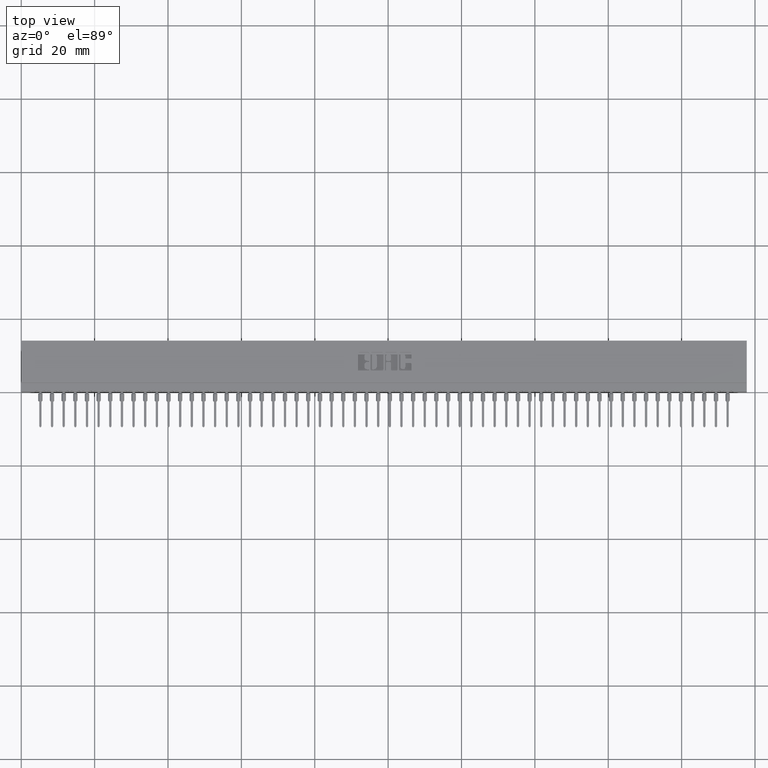
[diagram: clean part render]
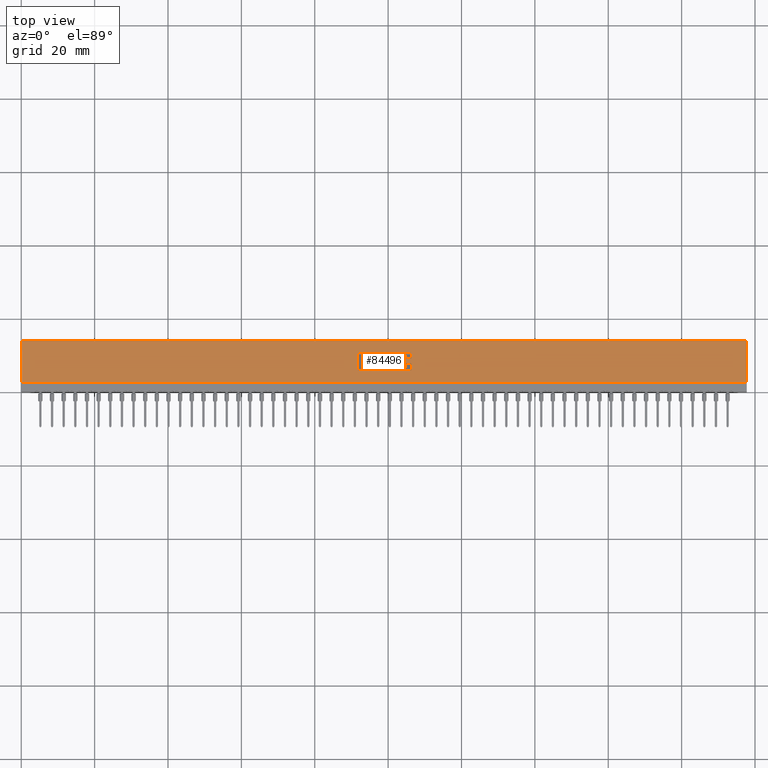
[diagram: same view with one face highlighted and labeled with its STEP entity id]
A machine part, top view. The second image highlights one B-rep face of the part: STEP entity #84496.
In plain terms, the highlighted planar face has unit normal (0, 0, -1).
Its self-contained STEP definition (entity closure, byte-faithful):
#118 = DIRECTION ( 'NONE',  ( -0.0000000000000000000, 0.0000000000000000000, 1.000000000000000000 ) ) ;
#160 = CARTESIAN_POINT ( 'NONE',  ( 3.725633606535351028, 0.4231567020380327948, 0.0000000000000000000 ) ) ;
#239 = DIRECTION ( 'NONE',  ( 0.0000000000000000000, 0.0000000000000000000, -1.000000000000000000 ) ) ;
#363 = AXIS2_PLACEMENT_3D ( 'NONE', #75052, #21993, #8177 ) ;
#456 = EDGE_CURVE ( 'NONE', #17823, #62349, #33309, .T. ) ;
#697 = DIRECTION ( 'NONE',  ( -0.0000000000000000000, 0.0000000000000000000, 1.000000000000000000 ) ) ;
#720 = AXIS2_PLACEMENT_3D ( 'NONE', #56618, #23608, #38281 ) ;
#769 = VECTOR ( 'NONE', #46273, 39.37007874015748143 ) ;
#899 = CARTESIAN_POINT ( 'NONE',  ( 3.712137060005083811, 0.3318709691426839914, 0.0000000000000000000 ) ) ;
#942 = ORIENTED_EDGE ( 'NONE', *, *, #35581, .F. ) ;
#985 = VERTEX_POINT ( 'NONE', #63590 ) ;
#1011 = CARTESIAN_POINT ( 'NONE',  ( 3.732504575677999981, 0.4162857328953863401, 0.0000000000000000000 ) ) ;
#1423 = VECTOR ( 'NONE', #83284, 39.37007874015748143 ) ;
#1590 = LINE ( 'NONE', #61792, #7435 ) ;
#1860 = LINE ( 'NONE', #35301, #40144 ) ;
#2007 = CARTESIAN_POINT ( 'NONE',  ( 3.901088711428331024, 0.2337142671046480435, 0.0000000000000000000 ) ) ;
#2060 = EDGE_LOOP ( 'NONE', ( #19575, #12474, #39169, #4233, #67596, #39565, #61912, #14577 ) ) ;
#2369 = DIRECTION ( 'NONE',  ( -1.000000000000000000, -0.0000000000000000000, -0.0000000000000000000 ) ) ;
#2464 = EDGE_CURVE ( 'NONE', #25404, #71590, #25777, .T. ) ;
#2561 = EDGE_CURVE ( 'NONE', #63890, #5316, #57704, .T. ) ;
#2607 = ORIENTED_EDGE ( 'NONE', *, *, #7916, .T. ) ;
#2633 = VERTEX_POINT ( 'NONE', #10858 ) ;
#2831 = ORIENTED_EDGE ( 'NONE', *, *, #456, .T. ) ;
#3280 = CARTESIAN_POINT ( 'NONE',  ( 3.621342110619937937, 0.4133410318342102263, 0.0000000000000000000 ) ) ;
#3495 = ORIENTED_EDGE ( 'NONE', *, *, #52227, .F. ) ;
#3633 = EDGE_CURVE ( 'NONE', #22950, #4155, #25141, .T. ) ;
#3946 = DIRECTION ( 'NONE',  ( -0.0000000000000000000, 0.0000000000000000000, 1.000000000000000000 ) ) ;
#4063 = ORIENTED_EDGE ( 'NONE', *, *, #53531, .T. ) ;
#4088 = EDGE_CURVE ( 'NONE', #20331, #81062, #78711, .T. ) ;
#4155 = VERTEX_POINT ( 'NONE', #87597 ) ;
#4233 = ORIENTED_EDGE ( 'NONE', *, *, #46121, .F. ) ;
#4337 = CARTESIAN_POINT ( 'NONE',  ( 4.093721239177998683, 0.2668421540424530947, 0.0000000000000000000 ) ) ;
#4641 = ORIENTED_EDGE ( 'NONE', *, *, #73989, .F. ) ;
#4708 = AXIS2_PLACEMENT_3D ( 'NONE', #17095, #44290, #9966 ) ;
#4947 = CARTESIAN_POINT ( 'NONE',  ( 3.901088711428331024, 0.4133410318342102263, 0.0000000000000000000 ) ) ;
#5092 = EDGE_CURVE ( 'NONE', #10386, #55599, #14182, .T. ) ;
#5302 = EDGE_CURVE ( 'NONE', #55599, #44040, #56488, .T. ) ;
#5316 = VERTEX_POINT ( 'NONE', #41794 ) ;
#5545 = AXIS2_PLACEMENT_3D ( 'NONE', #57486, #19537, #65921 ) ;
#5588 = DIRECTION ( 'NONE',  ( 1.000000000000000000, 0.0000000000000000000, 0.0000000000000000000 ) ) ;
#5799 = DIRECTION ( 'NONE',  ( 0.0000000000000000000, -1.000000000000000000, 0.0000000000000000000 ) ) ;
#6038 = CARTESIAN_POINT ( 'NONE',  ( 3.725633606535351028, 0.4162857328953863401, 0.0000000000000000000 ) ) ;
#6174 = VECTOR ( 'NONE', #49146, 39.37007874015748143 ) ;
#6895 = CIRCLE ( 'NONE', #11141, 0.009815670203806891800 ) ;
#6936 = DIRECTION ( 'NONE',  ( 1.000000000000000000, 0.0000000000000000000, 0.0000000000000000000 ) ) ;
#7311 = AXIS2_PLACEMENT_3D ( 'NONE', #34369, #74919, #48188 ) ;
#7352 = CARTESIAN_POINT ( 'NONE',  ( 3.907959680570987082, 0.2337142671046480435, 0.0000000000000000000 ) ) ;
#7408 = ORIENTED_EDGE ( 'NONE', *, *, #68815, .F. ) ;
#7435 = VECTOR ( 'NONE', #27919, 39.37007874015748143 ) ;
#7582 = VERTEX_POINT ( 'NONE', #67224 ) ;
#7777 = VERTEX_POINT ( 'NONE', #43564 ) ;
#7814 = ORIENTED_EDGE ( 'NONE', *, *, #75448, .F. ) ;
#7916 = EDGE_CURVE ( 'NONE', #41254, #20409, #39058, .T. ) ;
#8036 = VECTOR ( 'NONE', #46900, 39.37007874015748143 ) ;
#8069 = CARTESIAN_POINT ( 'NONE',  ( -0.0000000000000000000, 0.3539562271012337002, 0.0000000000000000000 ) ) ;
#8177 = DIRECTION ( 'NONE',  ( 1.000000000000000000, 0.0000000000000000000, 0.0000000000000000000 ) ) ;
#8264 = CARTESIAN_POINT ( 'NONE',  ( 4.067464321382818326, 0.3831578459575297191, 0.0000000000000000000 ) ) ;
#8487 = VECTOR ( 'NONE', #42053, 39.37007874015748143 ) ;
#8797 = AXIS2_PLACEMENT_3D ( 'NONE', #66796, #38294, #11545 ) ;
#8904 = VERTEX_POINT ( 'NONE', #35626 ) ;
#8995 = CARTESIAN_POINT ( 'NONE',  ( 4.067464321382818326, 0.0000000000000000000, 0.0000000000000000000 ) ) ;
#9081 = CARTESIAN_POINT ( 'NONE',  ( 3.977160155507785788, 0.2268432979619847134, 0.0000000000000000000 ) ) ;
#9245 = DIRECTION ( 'NONE',  ( 0.0000000000000000000, -1.000000000000000000, 0.0000000000000000000 ) ) ;
#9255 = VECTOR ( 'NONE', #29866, 39.37007874015748143 ) ;
#9427 = DIRECTION ( 'NONE',  ( 1.000000000000000000, 0.0000000000000000000, 0.0000000000000000000 ) ) ;
#9591 = DIRECTION ( 'NONE',  ( -0.0000000000000000000, -1.000000000000000000, -0.0000000000000000000 ) ) ;
#9618 = EDGE_CURVE ( 'NONE', #69433, #41254, #82811, .T. ) ;
#9706 = CARTESIAN_POINT ( 'NONE',  ( 3.748455039759169161, 0.4133410318342102263, 0.0000000000000000000 ) ) ;
#9722 = CARTESIAN_POINT ( 'NONE',  ( 4.119978156973179040, 0.2668421540424530947, 0.0000000000000000000 ) ) ;
#9827 = VERTEX_POINT ( 'NONE', #52321 ) ;
#9966 = DIRECTION ( 'NONE',  ( 1.000000000000000000, 0.0000000000000000000, 0.0000000000000000000 ) ) ;
#10249 = CARTESIAN_POINT ( 'NONE',  ( 3.680726915352909412, 0.3780046191005198564, 0.0000000000000000000 ) ) ;
#10386 = VERTEX_POINT ( 'NONE', #46394 ) ;
#10436 = DIRECTION ( 'NONE',  ( 0.0000000000000000000, 1.000000000000000000, -0.0000000000000000000 ) ) ;
#10644 = DIRECTION ( 'NONE',  ( 1.000000000000000000, 0.0000000000000000000, 0.0000000000000000000 ) ) ;
#10781 = ORIENTED_EDGE ( 'NONE', *, *, #82268, .F. ) ;
#10858 = CARTESIAN_POINT ( 'NONE',  ( 4.179362961706168278, 0.4231567020380511135, 0.0000000000000000000 ) ) ;
#10862 = AXIS2_PLACEMENT_3D ( 'NONE', #31593, #3946, #80571 ) ;
#10871 = VERTEX_POINT ( 'NONE', #2007 ) ;
#10904 = AXIS2_PLACEMENT_3D ( 'NONE', #52417, #88030, #6936 ) ;
#11141 = AXIS2_PLACEMENT_3D ( 'NONE', #25797, #79692, #10644 ) ;
#11234 = DIRECTION ( 'NONE',  ( -0.0000000000000000000, 0.0000000000000000000, 1.000000000000000000 ) ) ;
#11394 = AXIS2_PLACEMENT_3D ( 'NONE', #39722, #45987, #32604 ) ;
#11545 = DIRECTION ( 'NONE',  ( 1.000000000000000000, 0.0000000000000000000, 0.0000000000000000000 ) ) ;
#11587 = CIRCLE ( 'NONE', #50057, 0.009815670203796511215 ) ;
#12154 = VECTOR ( 'NONE', #9245, 39.37007874015748143 ) ;
#12225 = EDGE_CURVE ( 'NONE', #47422, #16369, #63045, .T. ) ;
#12226 = CARTESIAN_POINT ( 'NONE',  ( 4.067464321382818326, 0.2668421540424530947, 0.0000000000000000000 ) ) ;
#12360 = DIRECTION ( 'NONE',  ( -0.0000000000000000000, 0.0000000000000000000, 1.000000000000000000 ) ) ;
#12435 = LINE ( 'NONE', #71736, #77383 ) ;
#12474 = ORIENTED_EDGE ( 'NONE', *, *, #78423, .F. ) ;
#13115 = CIRCLE ( 'NONE', #54378, 0.03141014465218205237 ) ;
#13127 = DIRECTION ( 'NONE',  ( 1.000000000000000000, 0.0000000000000000000, 0.0000000000000000000 ) ) ;
#13446 = CARTESIAN_POINT ( 'NONE',  ( 3.725633606415414523, 0.2405852362473102912, 0.0000000000000000000 ) ) ;
#13496 = ORIENTED_EDGE ( 'NONE', *, *, #26802, .F. ) ;
#13869 = CARTESIAN_POINT ( 'NONE',  ( 4.063538053301265052, 0.2268432979619832701, 0.0000000000000000000 ) ) ;
#14074 = EDGE_CURVE ( 'NONE', #17407, #74479, #71786, .T. ) ;
#14077 = DIRECTION ( 'NONE',  ( 1.000000000000000000, 0.0000000000000000000, 0.0000000000000000000 ) ) ;
#14174 = DIRECTION ( 'NONE',  ( -0.0000000000000000000, 0.0000000000000000000, 1.000000000000000000 ) ) ;
#14182 = CIRCLE ( 'NONE', #34100, 0.009815670203787221770 ) ;
#14577 = ORIENTED_EDGE ( 'NONE', *, *, #52600, .F. ) ;
#14751 = CARTESIAN_POINT ( 'NONE',  ( 4.119978156973179040, 0.2965345564089687525, 0.0000000000000000000 ) ) ;
#15408 = ORIENTED_EDGE ( 'NONE', *, *, #15420, .F. ) ;
#15420 = EDGE_CURVE ( 'NONE', #2633, #17407, #48268, .T. ) ;
#15500 = VERTEX_POINT ( 'NONE', #1011 ) ;
#15532 = DIRECTION ( 'NONE',  ( 1.000000000000000000, 0.0000000000000000000, 0.0000000000000000000 ) ) ;
#15606 = VERTEX_POINT ( 'NONE', #37052 ) ;
#15765 = EDGE_CURVE ( 'NONE', #64678, #86329, #26774, .T. ) ;
#15801 = DIRECTION ( 'NONE',  ( 1.000000000000000000, 7.203446383881635636E-15, 0.0000000000000000000 ) ) ;
#15838 = DIRECTION ( 'NONE',  ( 1.000000000000000000, 0.0000000000000000000, 0.0000000000000000000 ) ) ;
#16041 = LINE ( 'NONE', #36549, #9255 ) ;
#16240 = CARTESIAN_POINT ( 'NONE',  ( -1.634053534411857802E-15, 0.2268432979619589562, 0.0000000000000000000 ) ) ;
#16281 = CARTESIAN_POINT ( 'NONE',  ( 3.732504575677997760, 0.2337142671046480435, 0.0000000000000000000 ) ) ;
#16369 = VERTEX_POINT ( 'NONE', #39985 ) ;
#16499 = DIRECTION ( 'NONE',  ( -1.000000000000000000, -3.530861605407645268E-14, 0.0000000000000000000 ) ) ;
#16951 = EDGE_CURVE ( 'NONE', #10871, #20409, #55103, .T. ) ;
#17095 = CARTESIAN_POINT ( 'NONE',  ( 4.063538053301265052, 0.2366589681657900179, 0.0000000000000000000 ) ) ;
#17407 = VERTEX_POINT ( 'NONE', #43302 ) ;
#17419 = LINE ( 'NONE', #31230, #61240 ) ;
#17507 = VECTOR ( 'NONE', #40652, 39.37007874015748143 ) ;
#17764 = CARTESIAN_POINT ( 'NONE',  ( 4.189178631909940442, 0.2366589681657830513, 0.0000000000000000000 ) ) ;
#17823 = VERTEX_POINT ( 'NONE', #56145 ) ;
#18048 = LINE ( 'NONE', #70656, #73520 ) ;
#18054 = VERTEX_POINT ( 'NONE', #69723 ) ;
#18197 = ORIENTED_EDGE ( 'NONE', *, *, #61053, .T. ) ;
#18399 = ORIENTED_EDGE ( 'NONE', *, *, #58595, .F. ) ;
#18491 = DIRECTION ( 'NONE',  ( 1.000000000000000000, 0.0000000000000000000, 0.0000000000000000000 ) ) ;
#18499 = EDGE_CURVE ( 'NONE', #985, #29089, #76376, .T. ) ;
#18687 = VERTEX_POINT ( 'NONE', #53073 ) ;
#18768 = CARTESIAN_POINT ( 'NONE',  ( 4.026729290037010855, 0.2366589681657809419, 0.0000000000000000000 ) ) ;
#18890 = CARTESIAN_POINT ( 'NONE',  ( 3.901088711428331024, 0.0000000000000000000, 0.0000000000000000000 ) ) ;
#18906 = CIRCLE ( 'NONE', #77261, 0.009815670203805798924 ) ;
#19002 = CARTESIAN_POINT ( 'NONE',  ( 3.914830649713646693, 0.0000000000000000000, 0.0000000000000000000 ) ) ;
#19321 = CARTESIAN_POINT ( 'NONE',  ( 3.732504575677973335, 0.3250000000000204392, 0.0000000000000000000 ) ) ;
#19537 = DIRECTION ( 'NONE',  ( -0.0000000000000000000, 0.0000000000000000000, 1.000000000000000000 ) ) ;
#19575 = ORIENTED_EDGE ( 'NONE', *, *, #66329, .F. ) ;
#19617 = EDGE_CURVE ( 'NONE', #37511, #63528, #81799, .T. ) ;
#19652 = CARTESIAN_POINT ( 'NONE',  ( 3.910904381632127613, 0.4133410318342102263, 0.0000000000000000000 ) ) ;
#19676 = EDGE_CURVE ( 'NONE', #15500, #51802, #82225, .T. ) ;
#19683 = EDGE_CURVE ( 'NONE', #28719, #20331, #81342, .T. ) ;
#19700 = CARTESIAN_POINT ( 'NONE',  ( 3.967344485303984758, 0.0000000000000000000, 0.0000000000000000000 ) ) ;
#20331 = VERTEX_POINT ( 'NONE', #23787 ) ;
#20399 = VERTEX_POINT ( 'NONE', #9081 ) ;
#20409 = VERTEX_POINT ( 'NONE', #36274 ) ;
#20523 = LINE ( 'NONE', #28110, #83034 ) ;
#20546 = CARTESIAN_POINT ( 'NONE',  ( 3.725633606535351028, 0.4094147637527357775, 0.0000000000000000000 ) ) ;
#20652 = ORIENTED_EDGE ( 'NONE', *, *, #31560, .F. ) ;
#20726 = DIRECTION ( 'NONE',  ( 1.000000000000000000, 0.0000000000000000000, 0.0000000000000000000 ) ) ;
#20756 = CARTESIAN_POINT ( 'NONE',  ( 3.748455039759169161, 0.0000000000000000000, 0.0000000000000000000 ) ) ;
#20841 = VECTOR ( 'NONE', #66247, 39.37007874015748143 ) ;
#21807 = CARTESIAN_POINT ( 'NONE',  ( -0.0000000000000000000, 0.3181290308573568870, 0.0000000000000000000 ) ) ;
#21887 = LINE ( 'NONE', #63322, #83935 ) ;
#21993 = DIRECTION ( 'NONE',  ( -0.0000000000000000000, 0.0000000000000000000, 1.000000000000000000 ) ) ;
#22078 = EDGE_CURVE ( 'NONE', #49827, #37853, #17419, .T. ) ;
#22488 = VERTEX_POINT ( 'NONE', #17764 ) ;
#22718 = DIRECTION ( 'NONE',  ( -1.000000000000000000, 0.0000000000000000000, 0.0000000000000000000 ) ) ;
#22855 = VERTEX_POINT ( 'NONE', #37275 ) ;
#22938 = EDGE_CURVE ( 'NONE', #42278, #7582, #16041, .T. ) ;
#22950 = VERTEX_POINT ( 'NONE', #66219 ) ;
#23007 = ORIENTED_EDGE ( 'NONE', *, *, #75939, .F. ) ;
#23608 = DIRECTION ( 'NONE',  ( -0.0000000000000000000, 0.0000000000000000000, 1.000000000000000000 ) ) ;
#23691 = DIRECTION ( 'NONE',  ( -0.0000000000000000000, 0.0000000000000000000, 1.000000000000000000 ) ) ;
#23787 = CARTESIAN_POINT ( 'NONE',  ( 7.785000000000000142, 0.5500000000000000444, 0.0000000000000000000 ) ) ;
#23957 = CARTESIAN_POINT ( 'NONE',  ( 3.957528815100187725, 0.3181290308573498926, 0.0000000000000000000 ) ) ;
#23973 = EDGE_CURVE ( 'NONE', #4155, #22855, #30562, .T. ) ;
#24363 = CARTESIAN_POINT ( 'NONE',  ( 7.785000000000000142, 0.5500000000000000444, 0.0000000000000000000 ) ) ;
#24471 = DIRECTION ( 'NONE',  ( -0.0000000000000000000, 0.0000000000000000000, 1.000000000000000000 ) ) ;
#24547 = ORIENTED_EDGE ( 'NONE', *, *, #69669, .F. ) ;
#24813 = DIRECTION ( 'NONE',  ( -0.0000000000000000000, -1.000000000000000000, -0.0000000000000000000 ) ) ;
#24958 = VERTEX_POINT ( 'NONE', #69388 ) ;
#25141 = CIRCLE ( 'NONE', #10862, 0.009815670203805252486 ) ;
#25404 = VERTEX_POINT ( 'NONE', #61301 ) ;
#25777 = LINE ( 'NONE', #52967, #769 ) ;
#25797 = CARTESIAN_POINT ( 'NONE',  ( 3.874095618367861871, 0.2366589681657900179, 0.0000000000000000000 ) ) ;
#26372 = ORIENTED_EDGE ( 'NONE', *, *, #59325, .F. ) ;
#26652 = ORIENTED_EDGE ( 'NONE', *, *, #56600, .T. ) ;
#26774 = LINE ( 'NONE', #46823, #50681 ) ;
#26802 = EDGE_CURVE ( 'NONE', #29766, #68423, #56812, .T. ) ;
#26833 = EDGE_CURVE ( 'NONE', #87379, #47422, #39223, .T. ) ;
#26850 = LINE ( 'NONE', #87428, #17507 ) ;
#26883 = DIRECTION ( 'NONE',  ( -1.000000000000000000, 0.0000000000000000000, 0.0000000000000000000 ) ) ;
#26993 = FACE_BOUND ( 'NONE', #85083, .T. ) ;
#27272 = ORIENTED_EDGE ( 'NONE', *, *, #34768, .T. ) ;
#27919 = DIRECTION ( 'NONE',  ( -1.000000000000000000, 0.0000000000000000000, 0.0000000000000000000 ) ) ;
#28085 = ORIENTED_EDGE ( 'NONE', *, *, #33976, .F. ) ;
#28110 = CARTESIAN_POINT ( 'NONE',  ( 0.0000000000000000000, 0.4231567020380327948, 0.0000000000000000000 ) ) ;
#28320 = FACE_BOUND ( 'NONE', #68429, .T. ) ;
#28345 = EDGE_CURVE ( 'NONE', #28719, #39894, #18048, .T. ) ;
#28719 = VERTEX_POINT ( 'NONE', #43805 ) ;
#28879 = VERTEX_POINT ( 'NONE', #38427 ) ;
#29089 = VERTEX_POINT ( 'NONE', #10249 ) ;
#29365 = CIRCLE ( 'NONE', #73424, 0.02625691779518049898 ) ;
#29452 = DIRECTION ( 'NONE',  ( 0.0000000000000000000, -1.000000000000000000, 0.0000000000000000000 ) ) ;
#29550 = EDGE_CURVE ( 'NONE', #49404, #37511, #73641, .T. ) ;
#29766 = VERTEX_POINT ( 'NONE', #75949 ) ;
#29772 = ORIENTED_EDGE ( 'NONE', *, *, #14074, .F. ) ;
#29866 = DIRECTION ( 'NONE',  ( -1.000000000000000000, -1.189163988687022540E-13, 0.0000000000000000000 ) ) ;
#30177 = CARTESIAN_POINT ( 'NONE',  ( 3.883911288571669118, 0.0000000000000000000, 0.0000000000000000000 ) ) ;
#30313 = DIRECTION ( 'NONE',  ( 0.0000000000000000000, 1.000000000000000000, -0.0000000000000000000 ) ) ;
#30317 = CARTESIAN_POINT ( 'NONE',  ( -1.123269580619267372E-14, 0.3181290308572101155, 0.0000000000000000000 ) ) ;
#30471 = DIRECTION ( 'NONE',  ( -0.0000000000000000000, 0.0000000000000000000, 1.000000000000000000 ) ) ;
#30544 = CIRCLE ( 'NONE', #720, 0.009815670203803066735 ) ;
#30557 = ORIENTED_EDGE ( 'NONE', *, *, #77230, .F. ) ;
#30562 = LINE ( 'NONE', #77364, #84404 ) ;
#30648 = VECTOR ( 'NONE', #15801, 39.37007874015748143 ) ;
#30661 = DIRECTION ( 'NONE',  ( -0.0000000000000000000, 0.0000000000000000000, 1.000000000000000000 ) ) ;
#30769 = LINE ( 'NONE', #58401, #75647 ) ;
#30964 = ORIENTED_EDGE ( 'NONE', *, *, #3633, .F. ) ;
#31071 = CARTESIAN_POINT ( 'NONE',  ( 4.129793827176966303, 0.3063502266127576257, 0.0000000000000000000 ) ) ;
#31172 = DIRECTION ( 'NONE',  ( -1.000000000000000000, 0.0000000000000000000, 0.0000000000000000000 ) ) ;
#31230 = CARTESIAN_POINT ( 'NONE',  ( 4.119978156973165717, 0.0000000000000000000, 0.0000000000000000000 ) ) ;
#31423 = VERTEX_POINT ( 'NONE', #45875 ) ;
#31560 = EDGE_CURVE ( 'NONE', #16369, #62349, #55225, .T. ) ;
#31593 = CARTESIAN_POINT ( 'NONE',  ( 4.179362961706166502, 0.3637718973050387272, 0.0000000000000000000 ) ) ;
#31972 = DIRECTION ( 'NONE',  ( -0.0000000000000000000, 0.0000000000000000000, 1.000000000000000000 ) ) ;
#32404 = AXIS2_PLACEMENT_3D ( 'NONE', #6038, #697, #5588 ) ;
#32412 = DIRECTION ( 'NONE',  ( 1.000000000000000000, 0.0000000000000000000, 0.0000000000000000000 ) ) ;
#32604 = DIRECTION ( 'NONE',  ( 1.000000000000000000, 0.0000000000000000000, 0.0000000000000000000 ) ) ;
#32930 = CARTESIAN_POINT ( 'NONE',  ( 3.914830649713646693, 0.3083133606535456428, 0.0000000000000000000 ) ) ;
#33273 = ORIENTED_EDGE ( 'NONE', *, *, #15765, .F. ) ;
#33309 = CIRCLE ( 'NONE', #77386, 0.03141014465217440571 ) ;
#33363 = CARTESIAN_POINT ( 'NONE',  ( 4.179362961706156732, 0.3063502266127576257, 0.0000000000000000000 ) ) ;
#33366 = VERTEX_POINT ( 'NONE', #12226 ) ;
#33469 = EDGE_CURVE ( 'NONE', #68423, #80080, #72549, .T. ) ;
#33523 = ORIENTED_EDGE ( 'NONE', *, *, #79963, .F. ) ;
#33680 = CARTESIAN_POINT ( 'NONE',  ( 3.924646319917449944, 0.3083133606535456428, 0.0000000000000000000 ) ) ;
#33976 = EDGE_CURVE ( 'NONE', #63890, #87379, #61932, .T. ) ;
#34100 = AXIS2_PLACEMENT_3D ( 'NONE', #57890, #51644, #51195 ) ;
#34112 = FACE_BOUND ( 'NONE', #48619, .T. ) ;
#34369 = CARTESIAN_POINT ( 'NONE',  ( 3.725633606535335485, 0.2337142671046480435, 0.0000000000000000000 ) ) ;
#34491 = CARTESIAN_POINT ( 'NONE',  ( 3.680726915352909412, 0.0000000000000000000, 0.0000000000000000000 ) ) ;
#34601 = AXIS2_PLACEMENT_3D ( 'NONE', #56454, #83613, #76924 ) ;
#34725 = CARTESIAN_POINT ( 'NONE',  ( -0.0000000000000000000, 0.4231567020380067046, 0.0000000000000000000 ) ) ;
#34768 = EDGE_CURVE ( 'NONE', #41987, #43942, #68448, .T. ) ;
#35085 = VECTOR ( 'NONE', #83799, 39.37007874015748143 ) ;
#35157 = AXIS2_PLACEMENT_3D ( 'NONE', #7352, #75527, #20726 ) ;
#35235 = AXIS2_PLACEMENT_3D ( 'NONE', #83280, #30661, #15532 ) ;
#35239 = LINE ( 'NONE', #71282, #55409 ) ;
#35301 = CARTESIAN_POINT ( 'NONE',  ( -0.0000000000000000000, 0.2268432979619832701, 0.0000000000000000000 ) ) ;
#35581 = EDGE_CURVE ( 'NONE', #31423, #76908, #11587, .T. ) ;
#35626 = CARTESIAN_POINT ( 'NONE',  ( 4.036544960240806112, 0.2366589681657809419, 0.0000000000000000000 ) ) ;
#35785 = CARTESIAN_POINT ( 'NONE',  ( 3.924646319917449944, 0.3181290308573487269, 0.0000000000000000000 ) ) ;
#35790 = ORIENTED_EDGE ( 'NONE', *, *, #59314, .F. ) ;
#35902 = AXIS2_PLACEMENT_3D ( 'NONE', #3280, #30471, #53176 ) ;
#36021 = EDGE_CURVE ( 'NONE', #49827, #64437, #58628, .T. ) ;
#36274 = CARTESIAN_POINT ( 'NONE',  ( 3.914830649713646693, 0.2337142671046480435, 0.0000000000000000000 ) ) ;
#36456 = ORIENTED_EDGE ( 'NONE', *, *, #4088, .F. ) ;
#36549 = CARTESIAN_POINT ( 'NONE',  ( -2.860952991545342866E-14, 0.2405852362468672567, 0.0000000000000000000 ) ) ;
#36716 = ORIENTED_EDGE ( 'NONE', *, *, #45155, .T. ) ;
#36788 = EDGE_CURVE ( 'NONE', #87988, #15500, #58655, .T. ) ;
#37052 = CARTESIAN_POINT ( 'NONE',  ( 3.967344485303984758, 0.2366589681657879085, 0.0000000000000000000 ) ) ;
#37275 = CARTESIAN_POINT ( 'NONE',  ( 4.189178631909972417, 0.4133410318341949052, 0.0000000000000000000 ) ) ;
#37511 = VERTEX_POINT ( 'NONE', #9706 ) ;
#37671 = DIRECTION ( 'NONE',  ( -0.0000000000000000000, 0.0000000000000000000, 1.000000000000000000 ) ) ;
#37853 = VERTEX_POINT ( 'NONE', #54698 ) ;
#37931 = AXIS2_PLACEMENT_3D ( 'NONE', #56699, #23691, #9427 ) ;
#38281 = DIRECTION ( 'NONE',  ( 1.000000000000000000, 0.0000000000000000000, 0.0000000000000000000 ) ) ;
#38283 = AXIS2_PLACEMENT_3D ( 'NONE', #55987, #62233, #15838 ) ;
#38294 = DIRECTION ( 'NONE',  ( -0.0000000000000000000, 0.0000000000000000000, 1.000000000000000000 ) ) ;
#38427 = CARTESIAN_POINT ( 'NONE',  ( 4.026729290037010855, 0.2268432979619847134, 0.0000000000000000000 ) ) ;
#38501 = CIRCLE ( 'NONE', #75545, 0.009815670203787768208 ) ;
#38513 = LINE ( 'NONE', #18890, #87136 ) ;
#38720 = ORIENTED_EDGE ( 'NONE', *, *, #69792, .T. ) ;
#39058 = LINE ( 'NONE', #19002, #20841 ) ;
#39169 = ORIENTED_EDGE ( 'NONE', *, *, #63791, .F. ) ;
#39223 = CIRCLE ( 'NONE', #42117, 0.006870969142663458512 ) ;
#39545 = DIRECTION ( 'NONE',  ( 1.000000000000000000, 0.0000000000000000000, 0.0000000000000000000 ) ) ;
#39565 = ORIENTED_EDGE ( 'NONE', *, *, #19617, .F. ) ;
#39722 = CARTESIAN_POINT ( 'NONE',  ( 4.129793827176977850, 0.3637718973050452775, 0.0000000000000000000 ) ) ;
#39894 = VERTEX_POINT ( 'NONE', #64058 ) ;
#39985 = CARTESIAN_POINT ( 'NONE',  ( 3.725633606535309728, 0.3318709691426839914, 0.0000000000000000000 ) ) ;
#40144 = VECTOR ( 'NONE', #76293, 39.37007874015748143 ) ;
#40151 = DIRECTION ( 'NONE',  ( -0.0000000000000000000, 0.0000000000000000000, 1.000000000000000000 ) ) ;
#40233 = CARTESIAN_POINT ( 'NONE',  ( 0.0000000000000000000, 0.4231567020380511135, 0.0000000000000000000 ) ) ;
#40336 = PLANE ( 'NONE',  #84202 ) ;
#40362 = CARTESIAN_POINT ( 'NONE',  ( 3.611526440416115147, 0.2366589681657900179, 0.0000000000000000000 ) ) ;
#40652 = DIRECTION ( 'NONE',  ( 1.000000000000000000, 0.0000000000000000000, 0.0000000000000000000 ) ) ;
#41001 = VERTEX_POINT ( 'NONE', #42379 ) ;
#41254 = VERTEX_POINT ( 'NONE', #32930 ) ;
#41356 = DIRECTION ( 'NONE',  ( 1.000000000000000000, 0.0000000000000000000, 0.0000000000000000000 ) ) ;
#41398 = AXIS2_PLACEMENT_3D ( 'NONE', #61729, #67972, #13127 ) ;
#41794 = CARTESIAN_POINT ( 'NONE',  ( 3.680726915352927620, 0.2867188862052006404, 0.0000000000000000000 ) ) ;
#41987 = VERTEX_POINT ( 'NONE', #77241 ) ;
#42053 = DIRECTION ( 'NONE',  ( 0.0000000000000000000, 1.000000000000000000, -0.0000000000000000000 ) ) ;
#42090 = ORIENTED_EDGE ( 'NONE', *, *, #47242, .T. ) ;
#42117 = AXIS2_PLACEMENT_3D ( 'NONE', #45185, #58552, #80339 ) ;
#42278 = VERTEX_POINT ( 'NONE', #13446 ) ;
#42379 = CARTESIAN_POINT ( 'NONE',  ( 3.883911288571669118, 0.2366589681657900179, 0.0000000000000000000 ) ) ;
#42385 = LINE ( 'NONE', #8069, #35085 ) ;
#43302 = CARTESIAN_POINT ( 'NONE',  ( 4.063538053301299691, 0.4231567020380511135, 0.0000000000000000000 ) ) ;
#43500 = DIRECTION ( 'NONE',  ( 0.0000000000000000000, 1.000000000000000000, -0.0000000000000000000 ) ) ;
#43564 = CARTESIAN_POINT ( 'NONE',  ( 4.053722383097458248, 0.2366589681657900179, 0.0000000000000000000 ) ) ;
#43805 = CARTESIAN_POINT ( 'NONE',  ( 0.0000000000000000000, 0.5500000000000000444, 0.0000000000000000000 ) ) ;
#43942 = VERTEX_POINT ( 'NONE', #23957 ) ;
#44040 = VERTEX_POINT ( 'NONE', #31071 ) ;
#44290 = DIRECTION ( 'NONE',  ( -0.0000000000000000000, 0.0000000000000000000, 1.000000000000000000 ) ) ;
#44388 = AXIS2_PLACEMENT_3D ( 'NONE', #33680, #60869, #14077 ) ;
#44561 = ORIENTED_EDGE ( 'NONE', *, *, #18499, .T. ) ;
#45155 = EDGE_CURVE ( 'NONE', #63882, #7582, #13115, .T. ) ;
#45185 = CARTESIAN_POINT ( 'NONE',  ( 3.725633606535309728, 0.3250000000000204392, 0.0000000000000000000 ) ) ;
#45198 = VECTOR ( 'NONE', #87133, 39.37007874015748143 ) ;
#45358 = CARTESIAN_POINT ( 'NONE',  ( 3.712137060005109568, 0.2719953808994904909, 0.0000000000000000000 ) ) ;
#45799 = DIRECTION ( 'NONE',  ( 1.000000000000000000, 0.0000000000000000000, 0.0000000000000000000 ) ) ;
#45875 = CARTESIAN_POINT ( 'NONE',  ( 3.910904381632127613, 0.4231567020380067046, 0.0000000000000000000 ) ) ;
#45987 = DIRECTION ( 'NONE',  ( -0.0000000000000000000, 0.0000000000000000000, 1.000000000000000000 ) ) ;
#46042 = CARTESIAN_POINT ( 'NONE',  ( 4.179362961706131863, 0.4133410318342110035, 0.0000000000000000000 ) ) ;
#46121 = EDGE_CURVE ( 'NONE', #58204, #83414, #26850, .T. ) ;
#46273 = DIRECTION ( 'NONE',  ( 0.0000000000000000000, -1.000000000000000000, 0.0000000000000000000 ) ) ;
#46380 = EDGE_CURVE ( 'NONE', #71590, #29766, #18906, .T. ) ;
#46394 = CARTESIAN_POINT ( 'NONE',  ( 4.189178631909940442, 0.2965345564089705288, 0.0000000000000000000 ) ) ;
#46408 = DIRECTION ( 'NONE',  ( -0.0000000000000000000, 0.0000000000000000000, 1.000000000000000000 ) ) ;
#46823 = CARTESIAN_POINT ( 'NONE',  ( 4.119978156973179040, 0.0000000000000000000, 0.0000000000000000000 ) ) ;
#46900 = DIRECTION ( 'NONE',  ( 0.0000000000000000000, 1.000000000000000000, -0.0000000000000000000 ) ) ;
#47031 = DIRECTION ( 'NONE',  ( -1.000000000000000000, 0.0000000000000000000, -0.0000000000000000000 ) ) ;
#47242 = EDGE_CURVE ( 'NONE', #10871, #76908, #38513, .T. ) ;
#47369 = CARTESIAN_POINT ( 'NONE',  ( 4.063538053301299691, 0.4133410318342102263, 0.0000000000000000000 ) ) ;
#47422 = VERTEX_POINT ( 'NONE', #19321 ) ;
#48188 = DIRECTION ( 'NONE',  ( 1.000000000000000000, 0.0000000000000000000, 0.0000000000000000000 ) ) ;
#48268 = LINE ( 'NONE', #40233, #54916 ) ;
#48619 = EDGE_LOOP ( 'NONE', ( #86718, #33523, #38720, #81202, #26652, #30557, #63369, #27272, #4063, #68968, #2607, #72407, #42090, #942 ) ) ;
#48691 = ORIENTED_EDGE ( 'NONE', *, *, #2561, .T. ) ;
#49048 = AXIS2_PLACEMENT_3D ( 'NONE', #47369, #118, #74534 ) ;
#49146 = DIRECTION ( 'NONE',  ( 0.0000000000000000000, 1.000000000000000000, -0.0000000000000000000 ) ) ;
#49206 = AXIS2_PLACEMENT_3D ( 'NONE', #75219, #14174, #41356 ) ;
#49404 = VERTEX_POINT ( 'NONE', #81054 ) ;
#49460 = EDGE_CURVE ( 'NONE', #31423, #83476, #64848, .T. ) ;
#49827 = VERTEX_POINT ( 'NONE', #54593 ) ;
#50057 = AXIS2_PLACEMENT_3D ( 'NONE', #19652, #40151, #52673 ) ;
#50061 = LINE ( 'NONE', #34491, #8487 ) ;
#50415 = VECTOR ( 'NONE', #71600, 39.37007874015748143 ) ;
#50681 = VECTOR ( 'NONE', #54862, 39.37007874015748143 ) ;
#51134 = VECTOR ( 'NONE', #24813, 39.37007874015748143 ) ;
#51195 = DIRECTION ( 'NONE',  ( 1.000000000000000000, 0.0000000000000000000, 0.0000000000000000000 ) ) ;
#51644 = DIRECTION ( 'NONE',  ( -0.0000000000000000000, 0.0000000000000000000, 1.000000000000000000 ) ) ;
#51659 = DIRECTION ( 'NONE',  ( 1.000000000000000000, 0.0000000000000000000, 0.0000000000000000000 ) ) ;
#51802 = VERTEX_POINT ( 'NONE', #160 ) ;
#52227 = EDGE_CURVE ( 'NONE', #80080, #42278, #61461, .T. ) ;
#52321 = CARTESIAN_POINT ( 'NONE',  ( 4.036544960240806112, 0.4133410318342010670, 0.0000000000000000000 ) ) ;
#52417 = CARTESIAN_POINT ( 'NONE',  ( 3.874095618367828120, 0.4133410318342100598, 0.0000000000000000000 ) ) ;
#52600 = EDGE_CURVE ( 'NONE', #18687, #49404, #1590, .T. ) ;
#52673 = DIRECTION ( 'NONE',  ( 1.000000000000000000, 0.0000000000000000000, 0.0000000000000000000 ) ) ;
#52691 = CARTESIAN_POINT ( 'NONE',  ( 3.725633606535351028, 0.4162857328953863401, 0.0000000000000000000 ) ) ;
#52810 = ORIENTED_EDGE ( 'NONE', *, *, #80429, .F. ) ;
#52823 = CARTESIAN_POINT ( 'NONE',  ( 3.725633606535335485, 0.2337142671046480435, 0.0000000000000000000 ) ) ;
#52956 = CIRCLE ( 'NONE', #64339, 0.009815670203840221042 ) ;
#52967 = CARTESIAN_POINT ( 'NONE',  ( 3.611526440416115147, 0.0000000000000000000, 0.0000000000000000000 ) ) ;
#53024 = CARTESIAN_POINT ( 'NONE',  ( 7.785000000000000142, 0.1000000000000000056, 0.0000000000000000000 ) ) ;
#53059 = EDGE_CURVE ( 'NONE', #63528, #58204, #77206, .T. ) ;
#53073 = CARTESIAN_POINT ( 'NONE',  ( 3.874095618367896066, 0.4231567020380511135, 0.0000000000000000000 ) ) ;
#53176 = DIRECTION ( 'NONE',  ( 1.000000000000000000, 0.0000000000000000000, 0.0000000000000000000 ) ) ;
#53427 = DIRECTION ( 'NONE',  ( -0.0000000000000000000, 0.0000000000000000000, 1.000000000000000000 ) ) ;
#53531 = EDGE_CURVE ( 'NONE', #43942, #69433, #71304, .T. ) ;
#54378 = AXIS2_PLACEMENT_3D ( 'NONE', #45358, #31972, #32412 ) ;
#54593 = CARTESIAN_POINT ( 'NONE',  ( 4.119978156973165717, 0.3831578454992600191, 0.0000000000000000000 ) ) ;
#54698 = CARTESIAN_POINT ( 'NONE',  ( 4.119978156973165717, 0.3637718973050452775, 0.0000000000000000000 ) ) ;
#54789 = DIRECTION ( 'NONE',  ( -1.000000000000000000, 0.0000000000000000000, 0.0000000000000000000 ) ) ;
#54862 = DIRECTION ( 'NONE',  ( 0.0000000000000000000, -1.000000000000000000, 0.0000000000000000000 ) ) ;
#54916 = VECTOR ( 'NONE', #26883, 39.37007874015748143 ) ;
#54938 = EDGE_CURVE ( 'NONE', #28879, #8904, #64358, .T. ) ;
#55103 = CIRCLE ( 'NONE', #35157, 0.006870969142657995000 ) ;
#55225 = LINE ( 'NONE', #82375, #69449 ) ;
#55409 = VECTOR ( 'NONE', #70416, 39.37007874015748143 ) ;
#55599 = VERTEX_POINT ( 'NONE', #33363 ) ;
#55914 = ORIENTED_EDGE ( 'NONE', *, *, #19676, .F. ) ;
#55987 = CARTESIAN_POINT ( 'NONE',  ( 4.026729290037011744, 0.4133410318342105039, 0.0000000000000000000 ) ) ;
#56145 = CARTESIAN_POINT ( 'NONE',  ( 3.680726915352909412, 0.3632811137948584457, 0.0000000000000000000 ) ) ;
#56200 = VERTEX_POINT ( 'NONE', #80710 ) ;
#56454 = CARTESIAN_POINT ( 'NONE',  ( 3.725633606535309728, 0.3250000000000204392, 0.0000000000000000000 ) ) ;
#56488 = LINE ( 'NONE', #56912, #68327 ) ;
#56600 = EDGE_CURVE ( 'NONE', #28879, #20399, #12435, .T. ) ;
#56618 = CARTESIAN_POINT ( 'NONE',  ( 3.977160155507788009, 0.2366589681657879085, 0.0000000000000000000 ) ) ;
#56699 = CARTESIAN_POINT ( 'NONE',  ( 3.712137060005125555, 0.3780046191005198564, 0.0000000000000000000 ) ) ;
#56812 = LINE ( 'NONE', #16240, #30648 ) ;
#56912 = CARTESIAN_POINT ( 'NONE',  ( 0.0000000000000000000, 0.3063502266127576257, 0.0000000000000000000 ) ) ;
#57486 = CARTESIAN_POINT ( 'NONE',  ( 4.179362961706133639, 0.2366589681657900179, 0.0000000000000000000 ) ) ;
#57704 = CIRCLE ( 'NONE', #49206, 0.03141014465215637153 ) ;
#57890 = CARTESIAN_POINT ( 'NONE',  ( 4.179362961706153179, 0.2965345564089705288, 0.0000000000000000000 ) ) ;
#57964 = DIRECTION ( 'NONE',  ( 0.0000000000000000000, 1.000000000000000000, -0.0000000000000000000 ) ) ;
#57972 = CARTESIAN_POINT ( 'NONE',  ( 4.026729290037013520, 0.4231567020380067046, 0.0000000000000000000 ) ) ;
#58204 = VERTEX_POINT ( 'NONE', #66777 ) ;
#58235 = LINE ( 'NONE', #30177, #50415 ) ;
#58372 = CARTESIAN_POINT ( 'NONE',  ( 3.680726915352927620, 0.0000000000000000000, 0.0000000000000000000 ) ) ;
#58401 = CARTESIAN_POINT ( 'NONE',  ( 4.189178631909940442, 0.0000000000000000000, 0.0000000000000000000 ) ) ;
#58552 = DIRECTION ( 'NONE',  ( -0.0000000000000000000, 0.0000000000000000000, 1.000000000000000000 ) ) ;
#58595 = EDGE_CURVE ( 'NONE', #74479, #7777, #78730, .T. ) ;
#58628 = CIRCLE ( 'NONE', #8797, 0.02625691779517394173 ) ;
#58655 = CIRCLE ( 'NONE', #65775, 0.006870969142648706424 ) ;
#58911 = CARTESIAN_POINT ( 'NONE',  ( 3.725633606415414523, 0.2268432979619857959, 0.0000000000000000000 ) ) ;
#59173 = DIRECTION ( 'NONE',  ( -0.0000000000000000000, 0.0000000000000000000, 1.000000000000000000 ) ) ;
#59314 = EDGE_CURVE ( 'NONE', #71554, #22950, #42385, .T. ) ;
#59325 = EDGE_CURVE ( 'NONE', #63882, #5316, #69556, .T. ) ;
#59378 = DIRECTION ( 'NONE',  ( 1.000000000000000000, 0.0000000000000000000, 0.0000000000000000000 ) ) ;
#59979 = CARTESIAN_POINT ( 'NONE',  ( 0.0000000000000000000, 0.5500000000000000444, 0.0000000000000000000 ) ) ;
#60154 = VECTOR ( 'NONE', #16499, 39.37007874015748143 ) ;
#60549 = DIRECTION ( 'NONE',  ( 1.000000000000000000, 0.0000000000000000000, 0.0000000000000000000 ) ) ;
#60869 = DIRECTION ( 'NONE',  ( -0.0000000000000000000, 0.0000000000000000000, 1.000000000000000000 ) ) ;
#61053 = EDGE_CURVE ( 'NONE', #33366, #86329, #29365, .T. ) ;
#61240 = VECTOR ( 'NONE', #5799, 39.37007874015748143 ) ;
#61301 = CARTESIAN_POINT ( 'NONE',  ( 3.611526440416115147, 0.4133410318342102263, 0.0000000000000000000 ) ) ;
#61461 = CIRCLE ( 'NONE', #7311, 0.006870969142662365636 ) ;
#61729 = CARTESIAN_POINT ( 'NONE',  ( 3.957528815100187725, 0.3083133606535528592, 0.0000000000000000000 ) ) ;
#61792 = CARTESIAN_POINT ( 'NONE',  ( 0.0000000000000000000, 0.4231567020380511135, 0.0000000000000000000 ) ) ;
#61912 = ORIENTED_EDGE ( 'NONE', *, *, #29550, .F. ) ;
#61932 = LINE ( 'NONE', #21807, #1423 ) ;
#61938 = CARTESIAN_POINT ( 'NONE',  ( 3.725633606415388765, 0.3181290308573568870, 0.0000000000000000000 ) ) ;
#61957 = EDGE_CURVE ( 'NONE', #15606, #41987, #80749, .T. ) ;
#62233 = DIRECTION ( 'NONE',  ( -0.0000000000000000000, 0.0000000000000000000, 1.000000000000000000 ) ) ;
#62349 = VERTEX_POINT ( 'NONE', #899 ) ;
#62949 = LINE ( 'NONE', #8995, #6174 ) ;
#63045 = CIRCLE ( 'NONE', #34601, 0.006870969142663458512 ) ;
#63322 = CARTESIAN_POINT ( 'NONE',  ( 4.036544960240806112, 0.0000000000000000000, 0.0000000000000000000 ) ) ;
#63327 = ORIENTED_EDGE ( 'NONE', *, *, #22938, .F. ) ;
#63369 = ORIENTED_EDGE ( 'NONE', *, *, #61957, .T. ) ;
#63528 = VERTEX_POINT ( 'NONE', #82455 ) ;
#63590 = CARTESIAN_POINT ( 'NONE',  ( 3.712137060005125555, 0.4094147637527357775, 0.0000000000000000000 ) ) ;
#63791 = EDGE_CURVE ( 'NONE', #83414, #41001, #6895, .T. ) ;
#63796 = CARTESIAN_POINT ( 'NONE',  ( 3.874095618367861871, 0.2268432979619832701, 0.0000000000000000000 ) ) ;
#63882 = VERTEX_POINT ( 'NONE', #80577 ) ;
#63890 = VERTEX_POINT ( 'NONE', #82356 ) ;
#63912 = CIRCLE ( 'NONE', #5545, 0.009815670203806345362 ) ;
#64058 = CARTESIAN_POINT ( 'NONE',  ( 0.0000000000000000000, 0.1000000000000000056, 0.0000000000000000000 ) ) ;
#64291 = ORIENTED_EDGE ( 'NONE', *, *, #23973, .F. ) ;
#64339 = AXIS2_PLACEMENT_3D ( 'NONE', #46042, #66968, #80766 ) ;
#64358 = CIRCLE ( 'NONE', #68628, 0.009815670203795964777 ) ;
#64437 = VERTEX_POINT ( 'NONE', #8264 ) ;
#64477 = CARTESIAN_POINT ( 'NONE',  ( 4.129793827176977850, 0.3539562271012337002, 0.0000000000000000000 ) ) ;
#64678 = VERTEX_POINT ( 'NONE', #14751 ) ;
#64848 = LINE ( 'NONE', #34725, #78876 ) ;
#65775 = AXIS2_PLACEMENT_3D ( 'NONE', #52691, #11234, #59378 ) ;
#65921 = DIRECTION ( 'NONE',  ( 1.000000000000000000, 0.0000000000000000000, 0.0000000000000000000 ) ) ;
#65985 = CARTESIAN_POINT ( 'NONE',  ( 4.053722383097458248, 0.4133410318342102263, 0.0000000000000000000 ) ) ;
#66014 = ORIENTED_EDGE ( 'NONE', *, *, #68680, .F. ) ;
#66219 = CARTESIAN_POINT ( 'NONE',  ( 4.179362961706166502, 0.3539562271012335337, 0.0000000000000000000 ) ) ;
#66247 = DIRECTION ( 'NONE',  ( 0.0000000000000000000, -1.000000000000000000, 0.0000000000000000000 ) ) ;
#66329 = EDGE_CURVE ( 'NONE', #24958, #18687, #87758, .T. ) ;
#66618 = EDGE_LOOP ( 'NONE', ( #73726, #52810, #36456, #66949 ) ) ;
#66691 = ORIENTED_EDGE ( 'NONE', *, *, #26833, .F. ) ;
#66777 = CARTESIAN_POINT ( 'NONE',  ( 3.758270709962975964, 0.2268432979619832701, 0.0000000000000000000 ) ) ;
#66796 = CARTESIAN_POINT ( 'NONE',  ( 4.093721239177991578, 0.3831578459575297191, 0.0000000000000000000 ) ) ;
#66949 = ORIENTED_EDGE ( 'NONE', *, *, #19683, .F. ) ;
#66968 = DIRECTION ( 'NONE',  ( -0.0000000000000000000, 0.0000000000000000000, 1.000000000000000000 ) ) ;
#67223 = CARTESIAN_POINT ( 'NONE',  ( 4.129793827176966303, 0.2965345564089696406, 0.0000000000000000000 ) ) ;
#67224 = CARTESIAN_POINT ( 'NONE',  ( 3.712137060005109568, 0.2405852362473086814, 0.0000000000000000000 ) ) ;
#67596 = ORIENTED_EDGE ( 'NONE', *, *, #53059, .F. ) ;
#67930 = ORIENTED_EDGE ( 'NONE', *, *, #72476, .F. ) ;
#67972 = DIRECTION ( 'NONE',  ( -0.0000000000000000000, 0.0000000000000000000, 1.000000000000000000 ) ) ;
#68327 = VECTOR ( 'NONE', #76961, 39.37007874015748143 ) ;
#68423 = VERTEX_POINT ( 'NONE', #58911 ) ;
#68429 = EDGE_LOOP ( 'NONE', ( #44561, #78114, #2831, #20652, #84519, #66691, #28085, #48691, #26372, #36716, #63327, #3495, #76995, #13496, #83085, #87283, #4641, #23007, #55914, #79985, #66014 ) ) ;
#68448 = CIRCLE ( 'NONE', #41398, 0.009815670203797057652 ) ;
#68628 = AXIS2_PLACEMENT_3D ( 'NONE', #18768, #46408, #86063 ) ;
#68680 = EDGE_CURVE ( 'NONE', #985, #87988, #35239, .T. ) ;
#68815 = EDGE_CURVE ( 'NONE', #56200, #22488, #63912, .T. ) ;
#68968 = ORIENTED_EDGE ( 'NONE', *, *, #9618, .T. ) ;
#69253 = VECTOR ( 'NONE', #30313, 39.37007874015748143 ) ;
#69388 = CARTESIAN_POINT ( 'NONE',  ( 3.883911288571669118, 0.4133410318342102263, 0.0000000000000000000 ) ) ;
#69389 = EDGE_CURVE ( 'NONE', #17823, #29089, #50061, .T. ) ;
#69433 = VERTEX_POINT ( 'NONE', #35785 ) ;
#69449 = VECTOR ( 'NONE', #54789, 39.37007874015748143 ) ;
#69556 = LINE ( 'NONE', #58372, #69253 ) ;
#69669 = EDGE_CURVE ( 'NONE', #37853, #71554, #82532, .T. ) ;
#69723 = CARTESIAN_POINT ( 'NONE',  ( 3.621342110619937937, 0.4231567020380327948, 0.0000000000000000000 ) ) ;
#69792 = EDGE_CURVE ( 'NONE', #9827, #8904, #21887, .T. ) ;
#70308 = CARTESIAN_POINT ( 'NONE',  ( 4.053722383097458248, 0.0000000000000000000, 0.0000000000000000000 ) ) ;
#70416 = DIRECTION ( 'NONE',  ( 1.000000000000000000, 0.0000000000000000000, 0.0000000000000000000 ) ) ;
#70656 = CARTESIAN_POINT ( 'NONE',  ( 0.0000000000000000000, 0.5500000000000000444, 0.0000000000000000000 ) ) ;
#70979 = LINE ( 'NONE', #77236, #79625 ) ;
#71282 = CARTESIAN_POINT ( 'NONE',  ( -0.0000000000000000000, 0.4094147637527357775, 0.0000000000000000000 ) ) ;
#71304 = LINE ( 'NONE', #30317, #60154 ) ;
#71554 = VERTEX_POINT ( 'NONE', #64477 ) ;
#71590 = VERTEX_POINT ( 'NONE', #40362 ) ;
#71600 = DIRECTION ( 'NONE',  ( 0.0000000000000000000, 1.000000000000000000, -0.0000000000000000000 ) ) ;
#71736 = CARTESIAN_POINT ( 'NONE',  ( 0.0000000000000000000, 0.2268432979619847134, 0.0000000000000000000 ) ) ;
#71786 = CIRCLE ( 'NONE', #49048, 0.009815670203841313918 ) ;
#71803 = ORIENTED_EDGE ( 'NONE', *, *, #74148, .F. ) ;
#72407 = ORIENTED_EDGE ( 'NONE', *, *, #16951, .F. ) ;
#72476 = EDGE_CURVE ( 'NONE', #44040, #64678, #38501, .T. ) ;
#72549 = CIRCLE ( 'NONE', #86790, 0.006870969142662365636 ) ;
#72893 = ORIENTED_EDGE ( 'NONE', *, *, #5302, .F. ) ;
#72978 = CIRCLE ( 'NONE', #4708, 0.009815670203806891800 ) ;
#73418 = CARTESIAN_POINT ( 'NONE',  ( 3.621342110619921950, 0.2366589681657900179, 0.0000000000000000000 ) ) ;
#73424 = AXIS2_PLACEMENT_3D ( 'NONE', #4337, #59173, #45799 ) ;
#73520 = VECTOR ( 'NONE', #9591, 39.37007874015748143 ) ;
#73641 = CIRCLE ( 'NONE', #35235, 0.009815670203840767480 ) ;
#73726 = ORIENTED_EDGE ( 'NONE', *, *, #28345, .T. ) ;
#73989 = EDGE_CURVE ( 'NONE', #18054, #25404, #77182, .T. ) ;
#74148 = EDGE_CURVE ( 'NONE', #22855, #2633, #52956, .T. ) ;
#74205 = FACE_OUTER_BOUND ( 'NONE', #66618, .T. ) ;
#74209 = EDGE_CURVE ( 'NONE', #87995, #56200, #1860, .T. ) ;
#74479 = VERTEX_POINT ( 'NONE', #65985 ) ;
#74534 = DIRECTION ( 'NONE',  ( 1.000000000000000000, 0.0000000000000000000, 0.0000000000000000000 ) ) ;
#74919 = DIRECTION ( 'NONE',  ( -0.0000000000000000000, 0.0000000000000000000, 1.000000000000000000 ) ) ;
#75052 = CARTESIAN_POINT ( 'NONE',  ( 3.758270709962975964, 0.2366589681657900179, 0.0000000000000000000 ) ) ;
#75125 = DIRECTION ( 'NONE',  ( 0.0000000000000000000, -1.000000000000000000, 0.0000000000000000000 ) ) ;
#75219 = CARTESIAN_POINT ( 'NONE',  ( 3.712137060005083811, 0.2867188862052006404, 0.0000000000000000000 ) ) ;
#75225 = EDGE_CURVE ( 'NONE', #7777, #87995, #72978, .T. ) ;
#75448 = EDGE_CURVE ( 'NONE', #33366, #64437, #62949, .T. ) ;
#75527 = DIRECTION ( 'NONE',  ( -0.0000000000000000000, 0.0000000000000000000, 1.000000000000000000 ) ) ;
#75545 = AXIS2_PLACEMENT_3D ( 'NONE', #67223, #53427, #60549 ) ;
#75647 = VECTOR ( 'NONE', #57964, 39.37007874015748143 ) ;
#75939 = EDGE_CURVE ( 'NONE', #51802, #18054, #20523, .T. ) ;
#75949 = CARTESIAN_POINT ( 'NONE',  ( 3.621342110619918397, 0.2268432979619850465, 0.0000000000000000000 ) ) ;
#76196 = ORIENTED_EDGE ( 'NONE', *, *, #74209, .F. ) ;
#76293 = DIRECTION ( 'NONE',  ( 1.000000000000000000, 0.0000000000000000000, 0.0000000000000000000 ) ) ;
#76358 = ORIENTED_EDGE ( 'NONE', *, *, #5092, .F. ) ;
#76376 = CIRCLE ( 'NONE', #37931, 0.03141014465221592805 ) ;
#76715 = CIRCLE ( 'NONE', #38283, 0.009815670203795418339 ) ;
#76908 = VERTEX_POINT ( 'NONE', #4947 ) ;
#76924 = DIRECTION ( 'NONE',  ( 1.000000000000000000, 0.0000000000000000000, 0.0000000000000000000 ) ) ;
#76961 = DIRECTION ( 'NONE',  ( -1.000000000000000000, 0.0000000000000000000, 0.0000000000000000000 ) ) ;
#76995 = ORIENTED_EDGE ( 'NONE', *, *, #33469, .F. ) ;
#77158 = ORIENTED_EDGE ( 'NONE', *, *, #36021, .T. ) ;
#77182 = CIRCLE ( 'NONE', #35902, 0.009815670203822736764 ) ;
#77206 = CIRCLE ( 'NONE', #363, 0.009815670203806891800 ) ;
#77230 = EDGE_CURVE ( 'NONE', #15606, #20399, #30544, .T. ) ;
#77236 = CARTESIAN_POINT ( 'NONE',  ( 7.785000000000000142, 0.1000000000000000056, 0.0000000000000000000 ) ) ;
#77241 = CARTESIAN_POINT ( 'NONE',  ( 3.967344485303984758, 0.3083133606535435334, 0.0000000000000000000 ) ) ;
#77261 = AXIS2_PLACEMENT_3D ( 'NONE', #73418, #12360, #39545 ) ;
#77364 = CARTESIAN_POINT ( 'NONE',  ( 4.189178631909972417, 0.0000000000000000000, 0.0000000000000000000 ) ) ;
#77383 = VECTOR ( 'NONE', #31172, 39.37007874015748143 ) ;
#77386 = AXIS2_PLACEMENT_3D ( 'NONE', #85500, #24471, #51659 ) ;
#77939 = VECTOR ( 'NONE', #75125, 39.37007874015748143 ) ;
#78114 = ORIENTED_EDGE ( 'NONE', *, *, #69389, .F. ) ;
#78423 = EDGE_CURVE ( 'NONE', #41001, #24958, #58235, .T. ) ;
#78711 = LINE ( 'NONE', #24363, #51134 ) ;
#78730 = LINE ( 'NONE', #70308, #12154 ) ;
#78876 = VECTOR ( 'NONE', #82389, 39.37007874015748143 ) ;
#79625 = VECTOR ( 'NONE', #2369, 39.37007874015748143 ) ;
#79692 = DIRECTION ( 'NONE',  ( -0.0000000000000000000, 0.0000000000000000000, 1.000000000000000000 ) ) ;
#79963 = EDGE_CURVE ( 'NONE', #9827, #83476, #76715, .T. ) ;
#79985 = ORIENTED_EDGE ( 'NONE', *, *, #36788, .F. ) ;
#80080 = VERTEX_POINT ( 'NONE', #16281 ) ;
#80339 = DIRECTION ( 'NONE',  ( 1.000000000000000000, 0.0000000000000000000, 0.0000000000000000000 ) ) ;
#80429 = EDGE_CURVE ( 'NONE', #81062, #39894, #70979, .T. ) ;
#80571 = DIRECTION ( 'NONE',  ( 1.000000000000000000, 0.0000000000000000000, 0.0000000000000000000 ) ) ;
#80577 = CARTESIAN_POINT ( 'NONE',  ( 3.680726915352927620, 0.2719953808994904909, 0.0000000000000000000 ) ) ;
#80710 = CARTESIAN_POINT ( 'NONE',  ( 4.179362961706133639, 0.2268432979619832701, 0.0000000000000000000 ) ) ;
#80749 = LINE ( 'NONE', #19700, #8036 ) ;
#80766 = DIRECTION ( 'NONE',  ( 1.000000000000000000, 0.0000000000000000000, 0.0000000000000000000 ) ) ;
#81054 = CARTESIAN_POINT ( 'NONE',  ( 3.758270709963009715, 0.4231567020380511135, 0.0000000000000000000 ) ) ;
#81062 = VERTEX_POINT ( 'NONE', #53024 ) ;
#81202 = ORIENTED_EDGE ( 'NONE', *, *, #54938, .F. ) ;
#81342 = LINE ( 'NONE', #59979, #45198 ) ;
#81781 = CARTESIAN_POINT ( 'NONE',  ( 0.0000000000000000000, 0.5500000000000000444, 0.0000000000000000000 ) ) ;
#81799 = LINE ( 'NONE', #20756, #77939 ) ;
#82225 = CIRCLE ( 'NONE', #32404, 0.006870969142648706424 ) ;
#82268 = EDGE_CURVE ( 'NONE', #22488, #10386, #30769, .T. ) ;
#82325 = ORIENTED_EDGE ( 'NONE', *, *, #22078, .F. ) ;
#82356 = CARTESIAN_POINT ( 'NONE',  ( 3.712137060005083811, 0.3181290308573568870, 0.0000000000000000000 ) ) ;
#82375 = CARTESIAN_POINT ( 'NONE',  ( 0.0000000000000000000, 0.3318709691426839914, 0.0000000000000000000 ) ) ;
#82389 = DIRECTION ( 'NONE',  ( 1.000000000000000000, 0.0000000000000000000, 0.0000000000000000000 ) ) ;
#82455 = CARTESIAN_POINT ( 'NONE',  ( 3.748455039759169161, 0.2366589681657900179, 0.0000000000000000000 ) ) ;
#82532 = CIRCLE ( 'NONE', #11394, 0.009815670203811809741 ) ;
#82811 = CIRCLE ( 'NONE', #44388, 0.009815670203803066735 ) ;
#83034 = VECTOR ( 'NONE', #22718, 39.37007874015748143 ) ;
#83085 = ORIENTED_EDGE ( 'NONE', *, *, #46380, .F. ) ;
#83280 = CARTESIAN_POINT ( 'NONE',  ( 3.758270709963009715, 0.4133410318342102263, 0.0000000000000000000 ) ) ;
#83284 = DIRECTION ( 'NONE',  ( 1.000000000000000000, 0.0000000000000000000, 0.0000000000000000000 ) ) ;
#83414 = VERTEX_POINT ( 'NONE', #63796 ) ;
#83476 = VERTEX_POINT ( 'NONE', #57972 ) ;
#83613 = DIRECTION ( 'NONE',  ( -0.0000000000000000000, 0.0000000000000000000, 1.000000000000000000 ) ) ;
#83799 = DIRECTION ( 'NONE',  ( 1.000000000000000000, 0.0000000000000000000, 0.0000000000000000000 ) ) ;
#83935 = VECTOR ( 'NONE', #29452, 39.37007874015748143 ) ;
#84202 = AXIS2_PLACEMENT_3D ( 'NONE', #81781, #239, #47031 ) ;
#84404 = VECTOR ( 'NONE', #43500, 39.37007874015748143 ) ;
#84496 = ADVANCED_FACE ( 'NONE', ( #26993, #28320, #74205, #87568, #34112 ), #40336, .F. ) ;
#84519 = ORIENTED_EDGE ( 'NONE', *, *, #12225, .F. ) ;
#85083 = EDGE_LOOP ( 'NONE', ( #30964, #35790, #24547, #82325, #77158, #7814, #18197, #33273, #67930, #72893, #76358, #10781, #7408, #76196, #88112, #18399, #29772, #15408, #71803, #64291 ) ) ;
#85500 = CARTESIAN_POINT ( 'NONE',  ( 3.712137060005083811, 0.3632811137948584457, 0.0000000000000000000 ) ) ;
#86063 = DIRECTION ( 'NONE',  ( 1.000000000000000000, 0.0000000000000000000, 0.0000000000000000000 ) ) ;
#86329 = VERTEX_POINT ( 'NONE', #9722 ) ;
#86718 = ORIENTED_EDGE ( 'NONE', *, *, #49460, .T. ) ;
#86790 = AXIS2_PLACEMENT_3D ( 'NONE', #52823, #37671, #18491 ) ;
#87133 = DIRECTION ( 'NONE',  ( 1.000000000000000000, 0.0000000000000000000, 0.0000000000000000000 ) ) ;
#87136 = VECTOR ( 'NONE', #10436, 39.37007874015748143 ) ;
#87283 = ORIENTED_EDGE ( 'NONE', *, *, #2464, .F. ) ;
#87379 = VERTEX_POINT ( 'NONE', #61938 ) ;
#87428 = CARTESIAN_POINT ( 'NONE',  ( -0.0000000000000000000, 0.2268432979619832701, 0.0000000000000000000 ) ) ;
#87568 = FACE_BOUND ( 'NONE', #2060, .T. ) ;
#87597 = CARTESIAN_POINT ( 'NONE',  ( 4.189178631909972417, 0.3637718973050387272, 0.0000000000000000000 ) ) ;
#87758 = CIRCLE ( 'NONE', #10904, 0.009815670203841313918 ) ;
#87988 = VERTEX_POINT ( 'NONE', #20546 ) ;
#87995 = VERTEX_POINT ( 'NONE', #13869 ) ;
#88030 = DIRECTION ( 'NONE',  ( -0.0000000000000000000, 0.0000000000000000000, 1.000000000000000000 ) ) ;
#88112 = ORIENTED_EDGE ( 'NONE', *, *, #75225, .F. ) ;